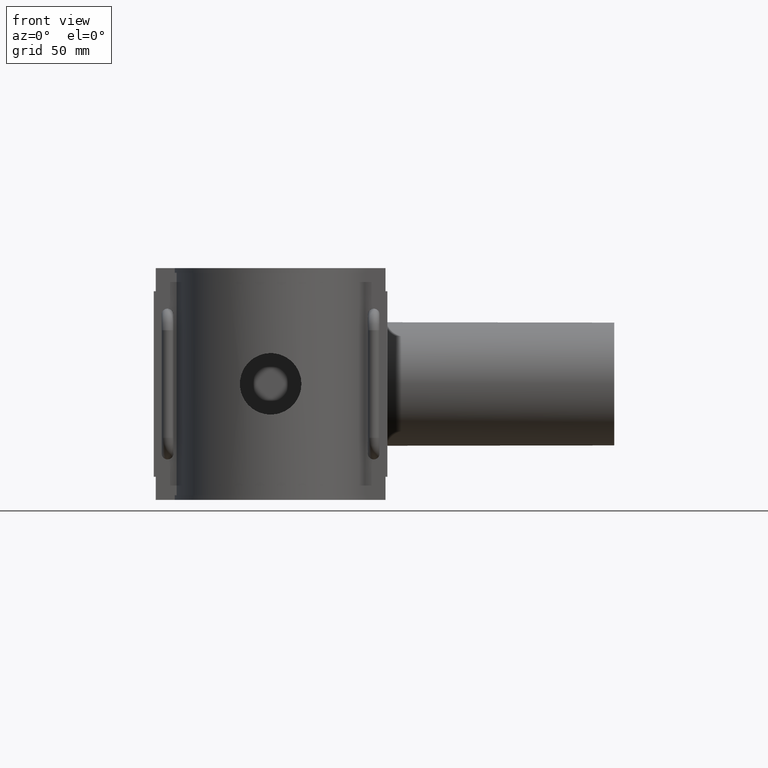
[diagram: clean part render]
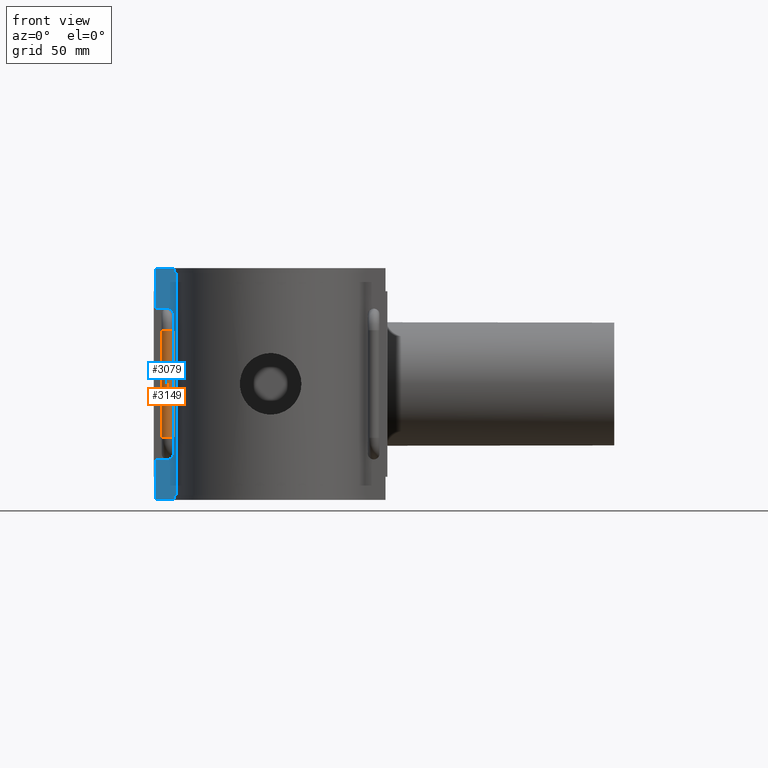
[diagram: same view with the hole feature highlighted: cylindrical wall and planar end face, labeled with their STEP entity ids]
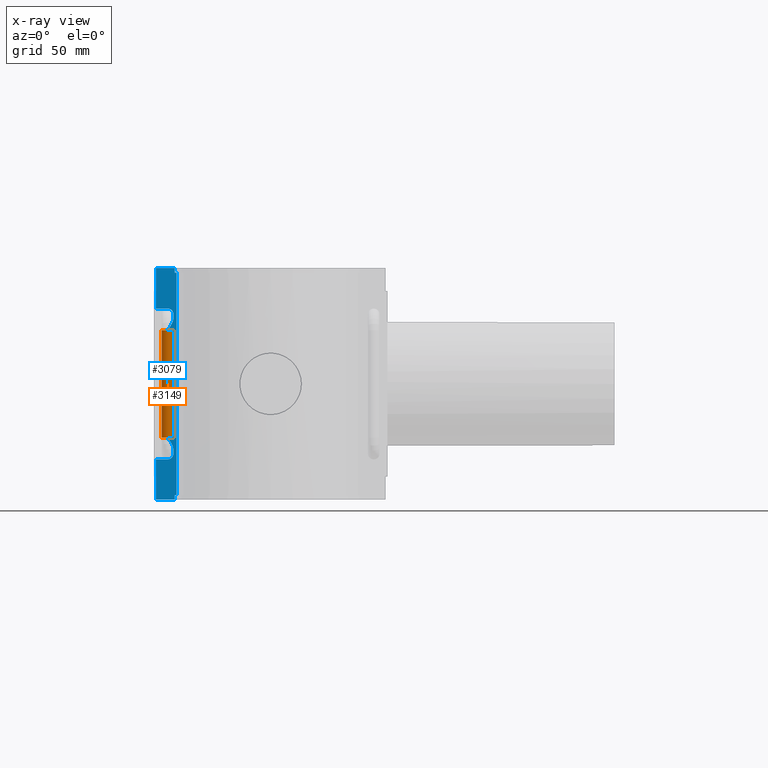
[diagram: x-ray of the same camera — body ghosted, the hole faces saturated]
A machine part, front view. The highlighted faces form one hole feature of diameter 6 mm: the cylindrical wall (entity #3149, orange) and its adjacent planar end face (entity #3079, blue) — they share a circular edge in the B-rep.
The next image is the same camera in x-ray (body ghosted, the hole faces saturated) — the bore reads through the body.
Wall:
#114=LINE('',#5282,#393);
#393=VECTOR('',#3776,54.7999999999999);
#740=CYLINDRICAL_SURFACE('',#3419,3.);
#880=FACE_OUTER_BOUND('',#1110,.T.);
#1110=EDGE_LOOP('',(#2595,#2596,#2597,#2598));
#1255=CIRCLE('',#3388,3.);
#1259=CIRCLE('',#3393,3.);
#1382=VERTEX_POINT('',#5268);
#1383=VERTEX_POINT('',#5281);
#1714=EDGE_CURVE('',#1383,#1382,#114,.T.);
#1877=EDGE_CURVE('',#1383,#1383,#1255,.T.);
#1887=EDGE_CURVE('',#1382,#1382,#1259,.T.);
#2595=ORIENTED_EDGE('',*,*,#1887,.F.);
#2596=ORIENTED_EDGE('',*,*,#1714,.F.);
#2597=ORIENTED_EDGE('',*,*,#1877,.T.);
#2598=ORIENTED_EDGE('',*,*,#1714,.T.);
#3149=ADVANCED_FACE('',(#880),#740,.T.);
#3388=AXIS2_PLACEMENT_3D('',#5980,#4046,#4047);
#3393=AXIS2_PLACEMENT_3D('',#6058,#4056,#4057);
#3419=AXIS2_PLACEMENT_3D('',#6141,#4122,#4123);
#3776=DIRECTION('',(0.,0.,1.));
#4046=DIRECTION('center_axis',(0.,6.12323399573677E-17,1.));
#4047=DIRECTION('ref_axis',(1.,0.,0.));
#4056=DIRECTION('center_axis',(0.,6.12323399573677E-17,1.));
#4057=DIRECTION('ref_axis',(1.,0.,0.));
#4122=DIRECTION('center_axis',(0.,0.,1.));
#4123=DIRECTION('ref_axis',(1.,0.,0.));
#5268=CARTESIAN_POINT('',(-52.5,-9.375,27.3999999999999));
#5281=CARTESIAN_POINT('',(-52.5,-9.375,-27.4));
#5282=CARTESIAN_POINT('',(-52.5,-9.375,27.3999999999999));
#5980=CARTESIAN_POINT('Origin',(-52.5,-12.3749999999995,-27.4));
#6058=CARTESIAN_POINT('Origin',(-52.5,-12.3749999999995,27.3999999999999));
#6141=CARTESIAN_POINT('Origin',(-52.5,-12.3749999999995,27.3999999999999));
End face:
#101=LINE('',#5238,#380);
#102=LINE('',#5241,#381);
#108=LINE('',#5255,#387);
#109=LINE('',#5257,#388);
#110=LINE('',#5259,#389);
#111=LINE('',#5261,#390);
#112=LINE('',#5263,#391);
#113=LINE('',#5265,#392);
#114=LINE('',#5282,#393);
#115=LINE('',#5299,#394);
#116=LINE('',#5301,#395);
#117=LINE('',#5302,#396);
#380=VECTOR('',#3753,2.36);
#381=VECTOR('',#3756,0.993171049292192);
#387=VECTOR('',#3768,113.28);
#388=VECTOR('',#3769,0.993171049292192);
#389=VECTOR('',#3770,2.36);
#390=VECTOR('',#3771,9.66676336755878);
#391=VECTOR('',#3772,20.6);
#392=VECTOR('',#3773,6.02433467297778);
#393=VECTOR('',#3776,54.7999999999999);
#394=VECTOR('',#3779,6.02433467297778);
#395=VECTOR('',#3780,20.6);
#396=VECTOR('',#3781,9.66676336755878);
#666=B_SPLINE_CURVE_WITH_KNOTS('',3,(#5269,#5270,#5271,#5272,#5273,#5274,
#5275,#5276,#5277,#5278,#5279,#5280),.UNSPECIFIED.,.F.,.F.,(4,2,2,2,2,4),
(1.55418267469211,1.6414383672911,1.76844964601289,1.89546092473468,2.10094201058331,
2.30642309643194),.UNSPECIFIED.);
#667=B_SPLINE_CURVE_WITH_KNOTS('',3,(#5284,#5285,#5286,#5287,#5288,#5289,
#5290,#5291,#5292,#5293,#5294,#5295),.UNSPECIFIED.,.F.,.F.,(4,2,2,2,2,4),
(0.,0.205481085848634,0.410962171697267,0.537973450419057,0.664984729140847,
0.75224042173983),.UNSPECIFIED.);
#810=FACE_OUTER_BOUND('',#1014,.T.);
#1014=EDGE_LOOP('',(#2243,#2244,#2245,#2246,#2247,#2248,#2249,#2250,#2251,
#2252,#2253,#2254,#2255,#2256,#2257,#2258));
#1225=CIRCLE('',#3309,3.);
#1226=CIRCLE('',#3310,3.);
#1366=VERTEX_POINT('',#5231);
#1369=VERTEX_POINT('',#5236);
#1370=VERTEX_POINT('',#5240);
#1375=VERTEX_POINT('',#5254);
#1376=VERTEX_POINT('',#5256);
#1377=VERTEX_POINT('',#5258);
#1378=VERTEX_POINT('',#5260);
#1379=VERTEX_POINT('',#5262);
#1380=VERTEX_POINT('',#5264);
#1381=VERTEX_POINT('',#5266);
#1382=VERTEX_POINT('',#5268);
#1383=VERTEX_POINT('',#5281);
#1384=VERTEX_POINT('',#5283);
#1385=VERTEX_POINT('',#5296);
#1386=VERTEX_POINT('',#5298);
#1387=VERTEX_POINT('',#5300);
#1698=EDGE_CURVE('',#1366,#1369,#101,.T.);
#1699=EDGE_CURVE('',#1369,#1370,#102,.T.);
#1706=EDGE_CURVE('',#1370,#1375,#108,.T.);
#1707=EDGE_CURVE('',#1375,#1376,#109,.T.);
#1708=EDGE_CURVE('',#1376,#1377,#110,.T.);
#1709=EDGE_CURVE('',#1378,#1377,#111,.T.);
#1710=EDGE_CURVE('',#1379,#1378,#112,.T.);
#1711=EDGE_CURVE('',#1379,#1380,#113,.T.);
#1712=EDGE_CURVE('',#1380,#1381,#1225,.T.);
#1713=EDGE_CURVE('',#1381,#1382,#666,.T.);
#1714=EDGE_CURVE('',#1383,#1382,#114,.T.);
#1715=EDGE_CURVE('',#1383,#1384,#667,.T.);
#1716=EDGE_CURVE('',#1384,#1385,#1226,.T.);
#1717=EDGE_CURVE('',#1385,#1386,#115,.T.);
#1718=EDGE_CURVE('',#1387,#1386,#116,.T.);
#1719=EDGE_CURVE('',#1366,#1387,#117,.T.);
#2243=ORIENTED_EDGE('',*,*,#1698,.T.);
#2244=ORIENTED_EDGE('',*,*,#1699,.T.);
#2245=ORIENTED_EDGE('',*,*,#1706,.T.);
#2246=ORIENTED_EDGE('',*,*,#1707,.T.);
#2247=ORIENTED_EDGE('',*,*,#1708,.T.);
#2248=ORIENTED_EDGE('',*,*,#1709,.F.);
#2249=ORIENTED_EDGE('',*,*,#1710,.F.);
#2250=ORIENTED_EDGE('',*,*,#1711,.T.);
#2251=ORIENTED_EDGE('',*,*,#1712,.T.);
#2252=ORIENTED_EDGE('',*,*,#1713,.T.);
#2253=ORIENTED_EDGE('',*,*,#1714,.F.);
#2254=ORIENTED_EDGE('',*,*,#1715,.T.);
#2255=ORIENTED_EDGE('',*,*,#1716,.T.);
#2256=ORIENTED_EDGE('',*,*,#1717,.T.);
#2257=ORIENTED_EDGE('',*,*,#1718,.F.);
#2258=ORIENTED_EDGE('',*,*,#1719,.F.);
#2937=PLANE('',#3308);
#3079=ADVANCED_FACE('',(#810),#2937,.T.);
#3308=AXIS2_PLACEMENT_3D('',#5253,#3766,#3767);
#3309=AXIS2_PLACEMENT_3D('',#5267,#3774,#3775);
#3310=AXIS2_PLACEMENT_3D('',#5297,#3777,#3778);
#3753=DIRECTION('',(0.,0.,1.));
#3756=DIRECTION('',(1.,0.,0.));
#3766=DIRECTION('center_axis',(0.,-1.,0.));
#3767=DIRECTION('ref_axis',(1.,0.,0.));
#3768=DIRECTION('',(0.,0.,1.));
#3769=DIRECTION('',(-1.,0.,0.));
#3770=DIRECTION('',(0.,0.,1.));
#3771=DIRECTION('',(1.,0.,0.));
#3772=DIRECTION('',(0.,0.,1.));
#3773=DIRECTION('',(1.,0.,7.37158929503087E-16));
#3774=DIRECTION('center_axis',(0.,1.,0.));
#3775=DIRECTION('ref_axis',(-1.,0.,0.));
#3776=DIRECTION('',(0.,0.,1.));
#3777=DIRECTION('center_axis',(0.,1.,0.));
#3778=DIRECTION('ref_axis',(-1.,0.,0.));
#3779=DIRECTION('',(-1.,0.,0.));
#3780=DIRECTION('',(0.,0.,1.));
#3781=DIRECTION('',(-1.,0.,0.));
#5231=CARTESIAN_POINT('',(-48.8332366324412,-9.375,-59.));
#5236=CARTESIAN_POINT('',(-48.8332366324412,-9.375,-56.64));
#5238=CARTESIAN_POINT('',(-48.8332366324412,-9.375,-59.));
#5240=CARTESIAN_POINT('',(-47.840065583149,-9.375,-56.64));
#5241=CARTESIAN_POINT('',(-29.25,-9.375,-56.64));
#5253=CARTESIAN_POINT('Origin',(-58.5,-9.375,0.));
#5254=CARTESIAN_POINT('',(-47.840065583149,-9.375,56.64));
#5255=CARTESIAN_POINT('',(-47.840065583149,-9.375,0.));
#5256=CARTESIAN_POINT('',(-48.8332366324412,-9.375,56.64));
#5257=CARTESIAN_POINT('',(-29.25,-9.375,56.64));
#5258=CARTESIAN_POINT('',(-48.8332366324412,-9.375,59.));
#5259=CARTESIAN_POINT('',(-48.8332366324412,-9.375,59.));
#5260=CARTESIAN_POINT('',(-58.5,-9.375,59.));
#5261=CARTESIAN_POINT('',(-58.5,-9.375,59.));
#5262=CARTESIAN_POINT('',(-58.5,-9.375,38.4));
#5263=CARTESIAN_POINT('',(-58.5,-9.375,0.));
#5264=CARTESIAN_POINT('',(-52.4756653270222,-9.375,38.4));
#5265=CARTESIAN_POINT('',(-55.4878326635111,-9.375,38.4));
#5266=CARTESIAN_POINT('',(-49.592907556629,-9.375,34.5695136140564));
#5267=CARTESIAN_POINT('Origin',(-52.4756653270222,-9.375,35.4));
#5268=CARTESIAN_POINT('',(-52.5,-9.375,27.3999999999999));
#5269=CARTESIAN_POINT('Ctrl Pts',(-49.592907556629,-9.375,34.5695136140564));
#5270=CARTESIAN_POINT('Ctrl Pts',(-49.5281744318221,-9.375,34.259817704623));
#5271=CARTESIAN_POINT('Ctrl Pts',(-49.5,-9.375,33.9358503070612));
#5272=CARTESIAN_POINT('Ctrl Pts',(-49.5,-9.375,33.2216270693253));
#5273=CARTESIAN_POINT('Ctrl Pts',(-49.5580680938667,-9.375,32.762701361354));
#5274=CARTESIAN_POINT('Ctrl Pts',(-49.7771836493012,-9.375,31.867336720585));
#5275=CARTESIAN_POINT('Ctrl Pts',(-49.9370980571853,-9.375,31.4306208843289));
#5276=CARTESIAN_POINT('Ctrl Pts',(-50.389168796984,-9.375,30.41870270221));
#5277=CARTESIAN_POINT('Ctrl Pts',(-50.770333637417,-9.375,29.7738388291261));
#5278=CARTESIAN_POINT('Ctrl Pts',(-51.6179526808835,-9.375,28.5365468681763));
#5279=CARTESIAN_POINT('Ctrl Pts',(-52.0805634898982,-9.375,27.9414902061385));
#5280=CARTESIAN_POINT('Ctrl Pts',(-52.5,-9.375,27.3999999999999));
#5281=CARTESIAN_POINT('',(-52.5,-9.375,-27.4));
#5282=CARTESIAN_POINT('',(-52.5,-9.375,27.3999999999999));
#5283=CARTESIAN_POINT('',(-49.592907556629,-9.375,-34.5695136140565));
#5284=CARTESIAN_POINT('Ctrl Pts',(-52.5,-9.375,-27.4));
#5285=CARTESIAN_POINT('Ctrl Pts',(-52.0805634898982,-9.375,-27.9414902061386));
#5286=CARTESIAN_POINT('Ctrl Pts',(-51.6179526808835,-9.375,-28.5365468681764));
#5287=CARTESIAN_POINT('Ctrl Pts',(-50.770333637417,-9.375,-29.7738388291262));
#5288=CARTESIAN_POINT('Ctrl Pts',(-50.389168796984,-9.375,-30.4187027022101));
#5289=CARTESIAN_POINT('Ctrl Pts',(-49.9370980571853,-9.375,-31.430620884329));
#5290=CARTESIAN_POINT('Ctrl Pts',(-49.7771836493012,-9.375,-31.8673367205852));
#5291=CARTESIAN_POINT('Ctrl Pts',(-49.5580680938667,-9.375,-32.7627013613541));
#5292=CARTESIAN_POINT('Ctrl Pts',(-49.5,-9.375,-33.2216270693254));
#5293=CARTESIAN_POINT('Ctrl Pts',(-49.5,-9.375,-33.9358503070613));
#5294=CARTESIAN_POINT('Ctrl Pts',(-49.5281744318221,-9.375,-34.2598177046231));
#5295=CARTESIAN_POINT('Ctrl Pts',(-49.592907556629,-9.375,-34.5695136140565));
#5296=CARTESIAN_POINT('',(-52.4756653270222,-9.375,-38.4));
#5297=CARTESIAN_POINT('Origin',(-52.4756653270222,-9.375,-35.4));
#5298=CARTESIAN_POINT('',(-58.5,-9.375,-38.4));
#5299=CARTESIAN_POINT('',(-58.5,-9.375,-38.4));
#5300=CARTESIAN_POINT('',(-58.5,-9.375,-59.));
#5301=CARTESIAN_POINT('',(-58.5,-9.375,0.));
#5302=CARTESIAN_POINT('',(-58.5,-9.375,-59.));